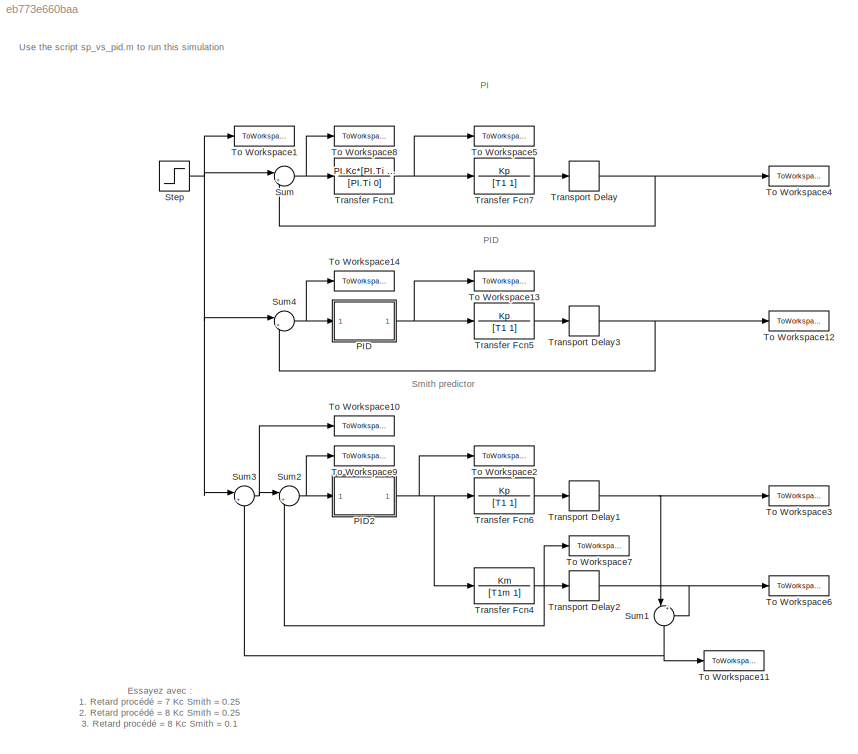
MODEL slx_eb773e660baa
KIND model
CONFIG AbsTol = auto
CONFIG EnableMultiTasking = on
CONFIG FixedStep = auto
CONFIG MaxStep = 0.01
CONFIG MinStep = auto
CONFIG RelTol = 1e-3
CONFIG SampleTimeConstraint = Unconstrained
CONFIG SolverName = VariableStepAuto
CONFIG StartTime = 0.0
CONFIG StopTime = 60
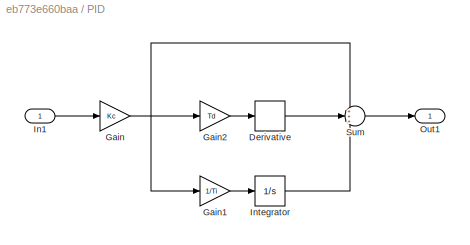
BLOCK [SubSystem] PID
  Ports = [1, 1]
  RequestExecContextInheritance = off
BLOCK [Derivative] PID/Derivative
  CoefficientInTFapproximation = 100
BLOCK [Gain] PID/Gain
  Gain = Kc
BLOCK [Gain] PID/Gain1
  Gain = 1/Ti
BLOCK [Gain] PID/Gain2
  Gain = Td
BLOCK [Inport] PID/In1
BLOCK [Integrator] PID/Integrator
  Ports = [1, 1]
BLOCK [Outport] PID/Out1
BLOCK [Sum] PID/Sum
  Inputs = +++
  Ports = [3, 1]
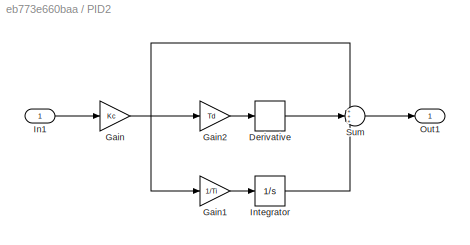
BLOCK [SubSystem] PID2
  Ports = [1, 1]
  RequestExecContextInheritance = off
BLOCK [Derivative] PID2/Derivative
  CoefficientInTFapproximation = 100
BLOCK [Gain] PID2/Gain
  Gain = Kc
BLOCK [Gain] PID2/Gain1
  Gain = 1/Ti
BLOCK [Gain] PID2/Gain2
  Gain = Td
BLOCK [Inport] PID2/In1
BLOCK [Integrator] PID2/Integrator
  Ports = [1, 1]
BLOCK [Outport] PID2/Out1
BLOCK [Sum] PID2/Sum
  Inputs = +++
  Ports = [3, 1]
BLOCK [Step] Step
  SampleTime = 0
BLOCK [Sum] Sum
  InputSameDT = on
  Inputs = |+-
  OutDataTypeStr = Inherit: Same as first input
  Ports = [2, 1]
  SaturateOnIntegerOverflow = on
BLOCK [Sum] Sum1
  InputSameDT = on
  Inputs = |+-
  NameLocation = right
  OutDataTypeStr = Inherit: Same as first input
  Ports = [2, 1]
  SaturateOnIntegerOverflow = on
BLOCK [Sum] Sum2
  InputSameDT = on
  Inputs = |+-
  OutDataTypeStr = Inherit: Same as first input
  Ports = [2, 1]
  SaturateOnIntegerOverflow = on
BLOCK [Sum] Sum3
  InputSameDT = on
  Inputs = |+-
  OutDataTypeStr = Inherit: Same as first input
  Ports = [2, 1]
  SaturateOnIntegerOverflow = on
BLOCK [Sum] Sum4
  InputSameDT = on
  Inputs = |+-
  OutDataTypeStr = Inherit: Same as first input
  Ports = [2, 1]
  SaturateOnIntegerOverflow = on
BLOCK [ToWorkspace] To Workspace1
  MaxDataPoints = inf
  Ports = [1]
  SampleTime = -1
  SaveFormat = Timeseries
  VariableName = r
BLOCK [ToWorkspace] To Workspace10
  MaxDataPoints = inf
  Ports = [1]
  SampleTime = -1
  SaveFormat = Timeseries
  VariableName = rs
BLOCK [ToWorkspace] To Workspace11
  MaxDataPoints = inf
  Ports = [1]
  SampleTime = -1
  SaveFormat = Timeseries
  VariableName = em
BLOCK [ToWorkspace] To Workspace12
  MaxDataPoints = inf
  Ports = [1]
  SampleTime = Ts
  SaveFormat = Timeseries
  VariableName = y2
BLOCK [ToWorkspace] To Workspace13
  MaxDataPoints = inf
  Ports = [1]
  SampleTime = -1
  SaveFormat = Timeseries
  VariableName = u2
BLOCK [ToWorkspace] To Workspace14
  MaxDataPoints = inf
  Ports = [1]
  SampleTime = -1
  SaveFormat = Timeseries
  VariableName = e2
BLOCK [ToWorkspace] To Workspace2
  MaxDataPoints = inf
  Ports = [1]
  SampleTime = -1
  SaveFormat = Timeseries
  VariableName = u3
BLOCK [ToWorkspace] To Workspace3
  MaxDataPoints = inf
  Ports = [1]
  SampleTime = -1
  SaveFormat = Timeseries
  VariableName = y3
BLOCK [ToWorkspace] To Workspace4
  MaxDataPoints = inf
  Ports = [1]
  SampleTime = Ts
  SaveFormat = Timeseries
  VariableName = y1
BLOCK [ToWorkspace] To Workspace5
  MaxDataPoints = inf
  Ports = [1]
  SampleTime = -1
  SaveFormat = Timeseries
  VariableName = u1
BLOCK [ToWorkspace] To Workspace6
  MaxDataPoints = inf
  Ports = [1]
  SampleTime = -1
  SaveFormat = Timeseries
  VariableName = ym
BLOCK [ToWorkspace] To Workspace7
  MaxDataPoints = inf
  Ports = [1]
  SampleTime = -1
  SaveFormat = Timeseries
  VariableName = yms
BLOCK [ToWorkspace] To Workspace8
  MaxDataPoints = inf
  Ports = [1]
  SampleTime = -1
  SaveFormat = Timeseries
  VariableName = e1
BLOCK [ToWorkspace] To Workspace9
  MaxDataPoints = inf
  Ports = [1]
  SampleTime = -1
  SaveFormat = Timeseries
  VariableName = e3
BLOCK [TransferFcn] Transfer Fcn1
  Denominator = [PI.Ti 0]
  Numerator = PI.Kc*[PI.Ti 1]
BLOCK [TransferFcn] Transfer Fcn4
  Denominator = [T1m 1]
  Numerator = Km
BLOCK [TransferFcn] Transfer Fcn5
  Denominator = [T1 1]
  Numerator = Kp
BLOCK [TransferFcn] Transfer Fcn6
  Denominator = [T1 1]
  Numerator = Kp
BLOCK [TransferFcn] Transfer Fcn7
  Denominator = [T1 1]
  Numerator = Kp
BLOCK [TransportDelay] Transport Delay
  BufferSize = 2048
  DelayTime = theta
  Ports = [1, 1]
BLOCK [TransportDelay] Transport Delay1
  BufferSize = 2048
  DelayTime = theta
  Ports = [1, 1]
BLOCK [TransportDelay] Transport Delay2
  BufferSize = 2048
  DelayTime = theta_m
  Ports = [1, 1]
BLOCK [TransportDelay] Transport Delay3
  BufferSize = 2048
  DelayTime = theta
  Ports = [1, 1]
ANNOTATION (root): Essayez avec : 1. Retard procédé = 7 Kc Smith = 0.25 2. Retard procédé = 8 Kc Smith = 0.25 3. Retard procédé = 8 Kc Smith = 0.1
ANNOTATION (root): PI
ANNOTATION (root): PID
ANNOTATION (root): Smith predictor
ANNOTATION (root): Use the script sp_vs_pid.m to run this simulation
LINE PID/Derivative:1 -> PID/Sum:2
LINE PID/Gain1:1 -> PID/Integrator:1
LINE PID/Gain2:1 -> PID/Derivative:1
NET PID/Gain:1 -> PID/Gain1:1, PID/Gain2:1, PID/Sum:1
LINE PID/In1:1 -> PID/Gain:1
LINE PID/Integrator:1 -> PID/Sum:3
LINE PID/Sum:1 -> PID/Out1:1
LINE PID2/Derivative:1 -> PID2/Sum:2
LINE PID2/Gain1:1 -> PID2/Integrator:1
LINE PID2/Gain2:1 -> PID2/Derivative:1
NET PID2/Gain:1 -> PID2/Gain1:1, PID2/Gain2:1, PID2/Sum:1
LINE PID2/In1:1 -> PID2/Gain:1
LINE PID2/Integrator:1 -> PID2/Sum:3
LINE PID2/Sum:1 -> PID2/Out1:1
NET PID2:1 -> To Workspace2:1, Transfer Fcn4:1, Transfer Fcn6:1
NET PID:1 -> To Workspace13:1, Transfer Fcn5:1
NET Step:1 -> Sum3:1, Sum4:1, Sum:1, To Workspace1:1
NET Sum1:1 -> Sum3:2, To Workspace11:1
NET Sum2:1 -> PID2:1, To Workspace9:1
NET Sum3:1 -> Sum2:1, To Workspace10:1
NET Sum4:1 -> PID:1, To Workspace14:1
NET Sum:1 -> To Workspace8:1, Transfer Fcn1:1
NET Transfer Fcn1:1 -> To Workspace5:1, Transfer Fcn7:1
NET Transfer Fcn4:1 -> Sum2:2, To Workspace7:1, Transport Delay2:1
LINE Transfer Fcn5:1 -> Transport Delay3:1
LINE Transfer Fcn6:1 -> Transport Delay1:1
LINE Transfer Fcn7:1 -> Transport Delay:1
NET Transport Delay1:1 -> Sum1:1, To Workspace3:1
NET Transport Delay2:1 -> Sum1:2, To Workspace6:1
NET Transport Delay3:1 -> Sum4:2, To Workspace12:1
NET Transport Delay:1 -> Sum:2, To Workspace4:1
note: NET lines group one-source signal fan-out (src -> all destinations, sorted); 1:1 wires keep LINE
